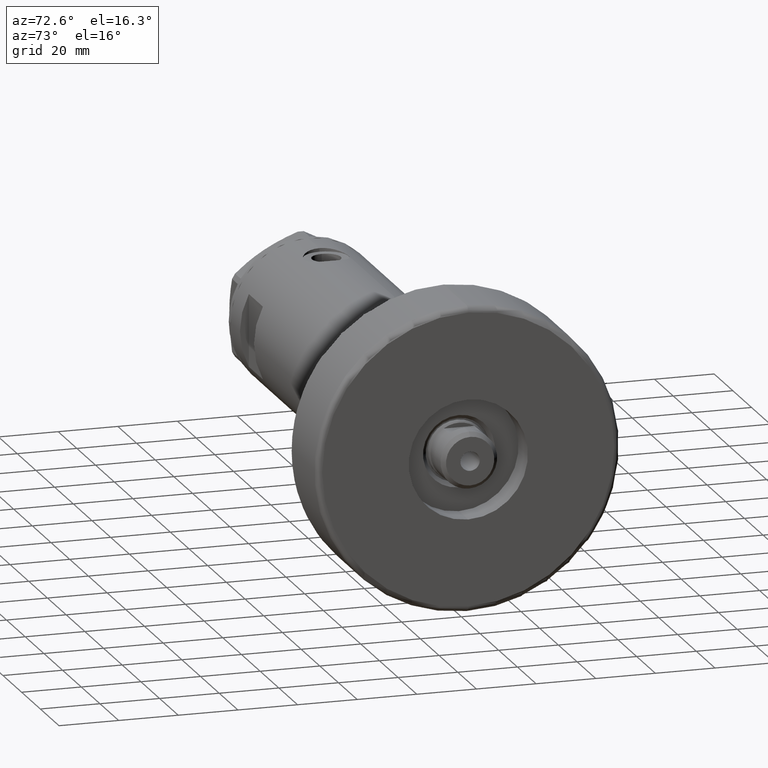
[diagram: clean part render]
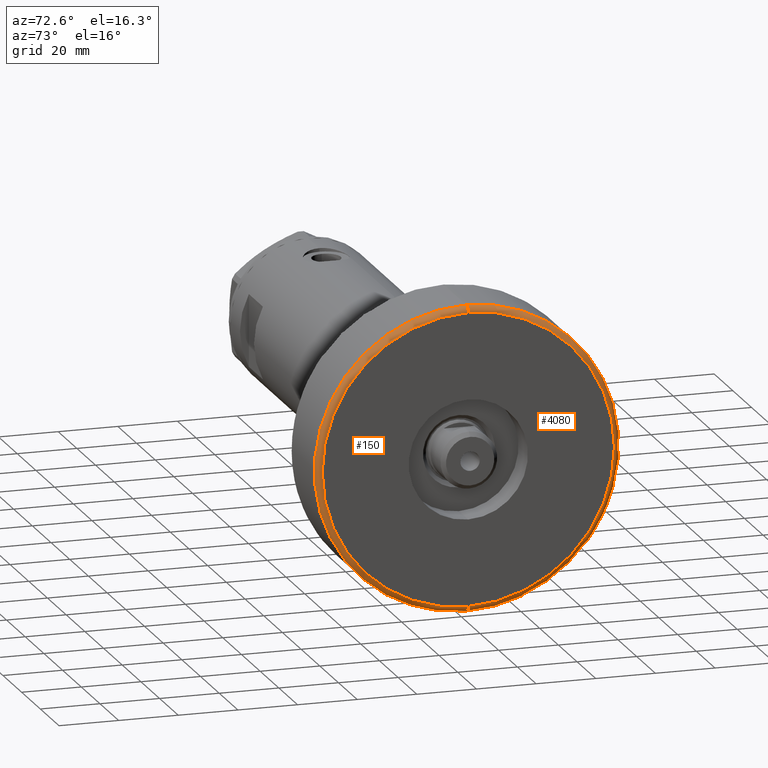
[diagram: same view with one multi-face feature highlighted, each face labeled with its STEP entity id]
A machine part, auxiliary view. The highlighted faces form ONE feature: a constant-radius fillet chain: 2 tangent blend faces with common blend radius 2 mm. The faces share edges in the B-rep.
Their STEP definitions:
[1] entity #150 (Torus):
#43 = CARTESIAN_POINT ( 'NONE',  ( -50.99999999999999289, 0.000000000000000000, 26.00000000000000355 ) ) ;
#50 = CARTESIAN_POINT ( 'NONE',  ( 50.99999999999999289, 6.245698675651499656E-15, 26.00000000000000355 ) ) ;
#71 = AXIS2_PLACEMENT_3D ( 'NONE', #1179, #2061, #5230 ) ;
#150 = ADVANCED_FACE ( 'NONE', ( #3209 ), #3282, .T. ) ;
#229 = CARTESIAN_POINT ( 'NONE',  ( -48.99999999999998579, 6.123233995736764507E-15, 28.00000000000000000 ) ) ;
#231 = VERTEX_POINT ( 'NONE', #3750 ) ;
#325 = DIRECTION ( 'NONE',  ( 0.000000000000000000, 0.000000000000000000, 1.000000000000000000 ) ) ;
#350 = CIRCLE ( 'NONE', #3310, 2.000000000000001776 ) ;
#462 = CARTESIAN_POINT ( 'NONE',  ( 0.000000000000000000, 0.000000000000000000, 28.00000000000000000 ) ) ;
#479 = AXIS2_PLACEMENT_3D ( 'NONE', #1521, #325, #3940 ) ;
#577 = DIRECTION ( 'NONE',  ( 1.000000000000000000, 0.000000000000000000, 0.000000000000000000 ) ) ;
#1032 = ORIENTED_EDGE ( 'NONE', *, *, #3927, .F. ) ;
#1036 = AXIS2_PLACEMENT_3D ( 'NONE', #462, #4214, #577 ) ;
#1179 = CARTESIAN_POINT ( 'NONE',  ( -48.99999999999998579, 6.000769315822029359E-15, 26.00000000000000355 ) ) ;
#1466 = CARTESIAN_POINT ( 'NONE',  ( 48.99999999999998579, 0.000000000000000000, 26.00000000000000355 ) ) ;
#1507 = VERTEX_POINT ( 'NONE', #43 ) ;
#1521 = CARTESIAN_POINT ( 'NONE',  ( 0.000000000000000000, 0.000000000000000000, 26.00000000000000355 ) ) ;
#2055 = DIRECTION ( 'NONE',  ( 1.000000000000000000, 0.000000000000000000, 0.000000000000000000 ) ) ;
#2061 = DIRECTION ( 'NONE',  ( 1.224646799147353207E-16, 1.000000000000000000, -0.000000000000000000 ) ) ;
#2145 = ORIENTED_EDGE ( 'NONE', *, *, #4850, .F. ) ;
#2792 = CIRCLE ( 'NONE', #4572, 50.99999999999999289 ) ;
#2808 = VERTEX_POINT ( 'NONE', #229 ) ;
#3161 = DIRECTION ( 'NONE',  ( -0.000000000000000000, -0.000000000000000000, -1.000000000000000000 ) ) ;
#3209 = FACE_OUTER_BOUND ( 'NONE', #3524, .T. ) ;
#3282 = TOROIDAL_SURFACE ( 'NONE', #479, 48.99999999999998579, 2.000000000000000000 ) ;
#3310 = AXIS2_PLACEMENT_3D ( 'NONE', #1466, #4695, #4322 ) ;
#3393 = ORIENTED_EDGE ( 'NONE', *, *, #4904, .T. ) ;
#3524 = EDGE_LOOP ( 'NONE', ( #1032, #3531, #3393, #2145 ) ) ;
#3531 = ORIENTED_EDGE ( 'NONE', *, *, #4460, .F. ) ;
#3750 = CARTESIAN_POINT ( 'NONE',  ( 48.99999999999998579, 0.000000000000000000, 28.00000000000000000 ) ) ;
#3927 = EDGE_CURVE ( 'NONE', #1507, #2808, #4565, .T. ) ;
#3929 = VERTEX_POINT ( 'NONE', #50 ) ;
#3940 = DIRECTION ( 'NONE',  ( 1.000000000000000000, 0.000000000000000000, 0.000000000000000000 ) ) ;
#4214 = DIRECTION ( 'NONE',  ( 0.000000000000000000, 0.000000000000000000, 1.000000000000000000 ) ) ;
#4322 = DIRECTION ( 'NONE',  ( 0.000000000000000000, 0.000000000000000000, -1.000000000000000000 ) ) ;
#4460 = EDGE_CURVE ( 'NONE', #3929, #1507, #2792, .T. ) ;
#4565 = CIRCLE ( 'NONE', #71, 2.000000000000001776 ) ;
#4572 = AXIS2_PLACEMENT_3D ( 'NONE', #4855, #3161, #2055 ) ;
#4695 = DIRECTION ( 'NONE',  ( 0.000000000000000000, -1.000000000000000000, 0.000000000000000000 ) ) ;
#4850 = EDGE_CURVE ( 'NONE', #2808, #231, #5009, .T. ) ;
#4855 = CARTESIAN_POINT ( 'NONE',  ( 0.000000000000000000, 0.000000000000000000, 26.00000000000000355 ) ) ;
#4904 = EDGE_CURVE ( 'NONE', #3929, #231, #350, .T. ) ;
#5009 = CIRCLE ( 'NONE', #1036, 48.99999999999998579 ) ;
#5230 = DIRECTION ( 'NONE',  ( -1.000000000000000000, 1.224646799147353454E-16, 0.000000000000000000 ) ) ;
[2] entity #4080 (Torus):
#14 = ORIENTED_EDGE ( 'NONE', *, *, #4904, .F. ) ;
#43 = CARTESIAN_POINT ( 'NONE',  ( -50.99999999999999289, 0.000000000000000000, 26.00000000000000355 ) ) ;
#50 = CARTESIAN_POINT ( 'NONE',  ( 50.99999999999999289, 6.245698675651499656E-15, 26.00000000000000355 ) ) ;
#71 = AXIS2_PLACEMENT_3D ( 'NONE', #1179, #2061, #5230 ) ;
#80 = CARTESIAN_POINT ( 'NONE',  ( 0.000000000000000000, 0.000000000000000000, 26.00000000000000355 ) ) ;
#229 = CARTESIAN_POINT ( 'NONE',  ( -48.99999999999998579, 6.123233995736764507E-15, 28.00000000000000000 ) ) ;
#231 = VERTEX_POINT ( 'NONE', #3750 ) ;
#302 = DIRECTION ( 'NONE',  ( 1.000000000000000000, 0.000000000000000000, 0.000000000000000000 ) ) ;
#337 = AXIS2_PLACEMENT_3D ( 'NONE', #3946, #4787, #302 ) ;
#350 = CIRCLE ( 'NONE', #3310, 2.000000000000001776 ) ;
#763 = AXIS2_PLACEMENT_3D ( 'NONE', #3658, #2863, #4002 ) ;
#1179 = CARTESIAN_POINT ( 'NONE',  ( -48.99999999999998579, 6.000769315822029359E-15, 26.00000000000000355 ) ) ;
#1466 = CARTESIAN_POINT ( 'NONE',  ( 48.99999999999998579, 0.000000000000000000, 26.00000000000000355 ) ) ;
#1507 = VERTEX_POINT ( 'NONE', #43 ) ;
#1794 = DIRECTION ( 'NONE',  ( 0.000000000000000000, 0.000000000000000000, 1.000000000000000000 ) ) ;
#1959 = AXIS2_PLACEMENT_3D ( 'NONE', #80, #1794, #4139 ) ;
#2061 = DIRECTION ( 'NONE',  ( 1.224646799147353207E-16, 1.000000000000000000, -0.000000000000000000 ) ) ;
#2618 = ORIENTED_EDGE ( 'NONE', *, *, #3881, .F. ) ;
#2695 = ORIENTED_EDGE ( 'NONE', *, *, #2966, .F. ) ;
#2808 = VERTEX_POINT ( 'NONE', #229 ) ;
#2863 = DIRECTION ( 'NONE',  ( 0.000000000000000000, 0.000000000000000000, 1.000000000000000000 ) ) ;
#2966 = EDGE_CURVE ( 'NONE', #231, #2808, #4671, .T. ) ;
#3310 = AXIS2_PLACEMENT_3D ( 'NONE', #1466, #4695, #4322 ) ;
#3635 = EDGE_LOOP ( 'NONE', ( #2618, #4376, #2695, #14 ) ) ;
#3658 = CARTESIAN_POINT ( 'NONE',  ( 0.000000000000000000, 0.000000000000000000, 28.00000000000000000 ) ) ;
#3750 = CARTESIAN_POINT ( 'NONE',  ( 48.99999999999998579, 0.000000000000000000, 28.00000000000000000 ) ) ;
#3881 = EDGE_CURVE ( 'NONE', #1507, #3929, #5091, .T. ) ;
#3927 = EDGE_CURVE ( 'NONE', #1507, #2808, #4565, .T. ) ;
#3929 = VERTEX_POINT ( 'NONE', #50 ) ;
#3946 = CARTESIAN_POINT ( 'NONE',  ( 0.000000000000000000, 0.000000000000000000, 26.00000000000000355 ) ) ;
#3988 = TOROIDAL_SURFACE ( 'NONE', #1959, 48.99999999999998579, 2.000000000000000000 ) ;
#4002 = DIRECTION ( 'NONE',  ( 1.000000000000000000, 0.000000000000000000, 0.000000000000000000 ) ) ;
#4080 = ADVANCED_FACE ( 'NONE', ( #4175 ), #3988, .T. ) ;
#4139 = DIRECTION ( 'NONE',  ( 1.000000000000000000, 0.000000000000000000, 0.000000000000000000 ) ) ;
#4175 = FACE_OUTER_BOUND ( 'NONE', #3635, .T. ) ;
#4322 = DIRECTION ( 'NONE',  ( 0.000000000000000000, 0.000000000000000000, -1.000000000000000000 ) ) ;
#4376 = ORIENTED_EDGE ( 'NONE', *, *, #3927, .T. ) ;
#4565 = CIRCLE ( 'NONE', #71, 2.000000000000001776 ) ;
#4671 = CIRCLE ( 'NONE', #763, 48.99999999999998579 ) ;
#4695 = DIRECTION ( 'NONE',  ( 0.000000000000000000, -1.000000000000000000, 0.000000000000000000 ) ) ;
#4787 = DIRECTION ( 'NONE',  ( -0.000000000000000000, -0.000000000000000000, -1.000000000000000000 ) ) ;
#4904 = EDGE_CURVE ( 'NONE', #3929, #231, #350, .T. ) ;
#5091 = CIRCLE ( 'NONE', #337, 50.99999999999999289 ) ;
#5230 = DIRECTION ( 'NONE',  ( -1.000000000000000000, 1.224646799147353454E-16, 0.000000000000000000 ) ) ;